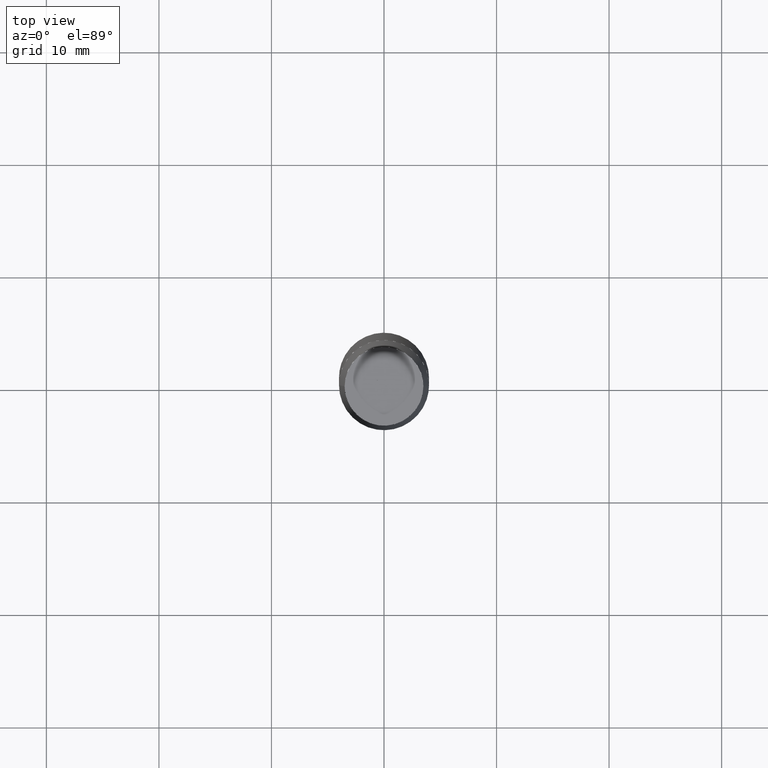
[diagram: clean part render]
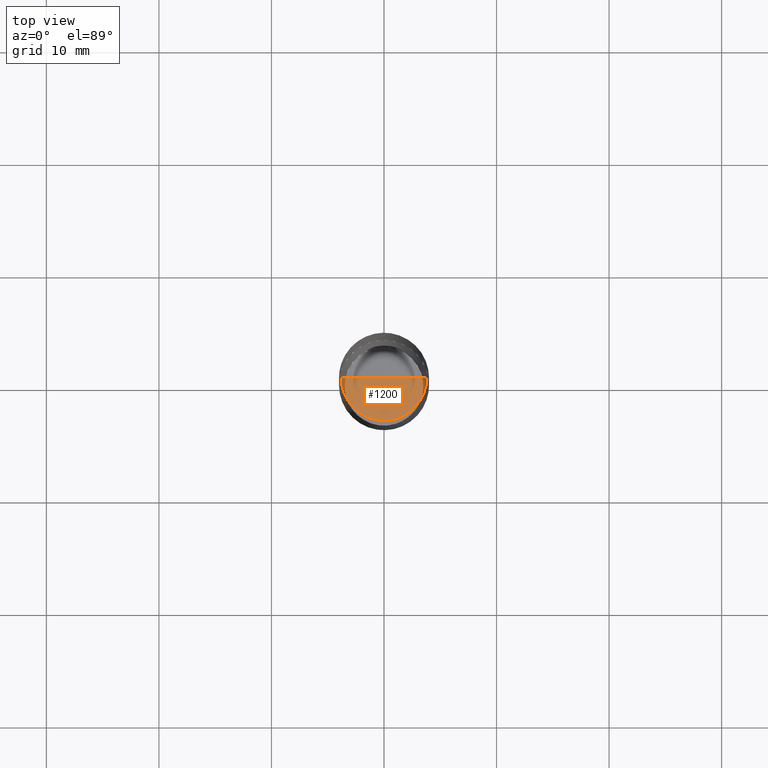
[diagram: same view with one face highlighted and labeled with its STEP entity id]
A machine part, top view. The second image highlights one B-rep face of the part: STEP entity #1200.
In plain terms, the highlighted face is a freeform B-spline surface patch.
Its self-contained STEP definition (entity closure, byte-faithful):
#845=CARTESIAN_POINT('',(3.8,0.0,38.0));
#849=CARTESIAN_POINT('',(-3.8,0.0,38.0));
#850=CARTESIAN_POINT('',(0.0,0.0,38.0));
#860=CARTESIAN_POINT('',(-3.8,-3.8,38.0));
#861=CARTESIAN_POINT('',(0.0,-3.8,38.0));
#862=CARTESIAN_POINT('',(3.8,-3.8,38.0));
#1185=(
BOUNDED_SURFACE()
B_SPLINE_SURFACE(1,2,(
(#849,#860,#861,#862,#845),
(#850,#850,#850,#850,#850)
), .UNSPECIFIED.,.F.,.F.,.F.)
B_SPLINE_SURFACE_WITH_KNOTS((2,2),(3,2,3),(
0.0,1.0),(
0.0,0.5,1.0), .UNSPECIFIED.)
GEOMETRIC_REPRESENTATION_ITEM()
RATIONAL_B_SPLINE_SURFACE(((1.0,0.707106781187,1.0,0.707106781187,1.0),
(1.0,0.707106781187,1.0,0.707106781187,1.0)
))
REPRESENTATION_ITEM('')
SURFACE()
);
#1186=(
BOUNDED_CURVE()
B_SPLINE_CURVE(2,(#845,#862,#861,#860,#849),.UNSPECIFIED.,.F.,.F.)
B_SPLINE_CURVE_WITH_KNOTS((3,2,3),
(0.0,0.5,1.0),.UNSPECIFIED.)
CURVE()
GEOMETRIC_REPRESENTATION_ITEM()
RATIONAL_B_SPLINE_CURVE((1.0,0.707106781187,1.0,0.707106781187,1.0))
REPRESENTATION_ITEM('')
);
#1187=(
BOUNDED_CURVE()
B_SPLINE_CURVE(1,(#849,#850),.UNSPECIFIED.,.F.,.F.)
B_SPLINE_CURVE_WITH_KNOTS((2,2),
(0.0,1.0),.UNSPECIFIED.)
CURVE()
GEOMETRIC_REPRESENTATION_ITEM()
RATIONAL_B_SPLINE_CURVE((1.0,1.0))
REPRESENTATION_ITEM('')
);
#1188=(
BOUNDED_CURVE()
B_SPLINE_CURVE(1,(#850,#845),.UNSPECIFIED.,.F.,.F.)
B_SPLINE_CURVE_WITH_KNOTS((2,2),
(0.0,1.0),.UNSPECIFIED.)
CURVE()
GEOMETRIC_REPRESENTATION_ITEM()
RATIONAL_B_SPLINE_CURVE((1.0,1.0))
REPRESENTATION_ITEM('')
);
#1189=VERTEX_POINT('',#845);
#1190=VERTEX_POINT('',#849);
#1191=VERTEX_POINT('',#850);
#1192=EDGE_CURVE('',#1189,#1190,#1186,.T.);
#1193=EDGE_CURVE('',#1190,#1191,#1187,.T.);
#1194=EDGE_CURVE('',#1191,#1189,#1188,.T.);
#1195=ORIENTED_EDGE('',*,*,#1192,.T.);
#1196=ORIENTED_EDGE('',*,*,#1193,.T.);
#1197=ORIENTED_EDGE('',*,*,#1194,.T.);
#1198=EDGE_LOOP('',(#1195,#1196,#1197));
#1199=FACE_OUTER_BOUND('',#1198,.T.);
#1200=ADVANCED_FACE('',(#1199),#1185,.T.);